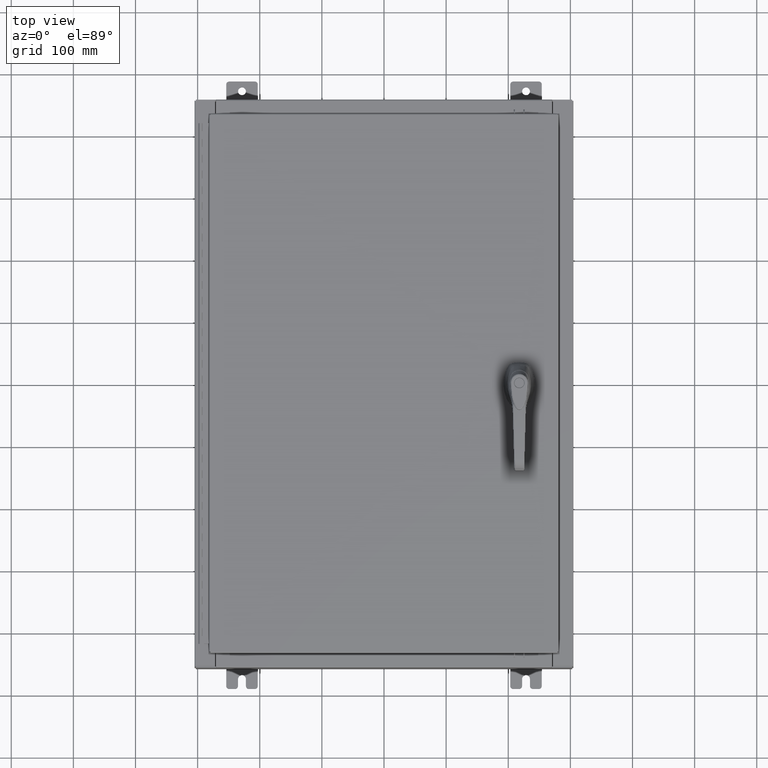
[diagram: clean part render]
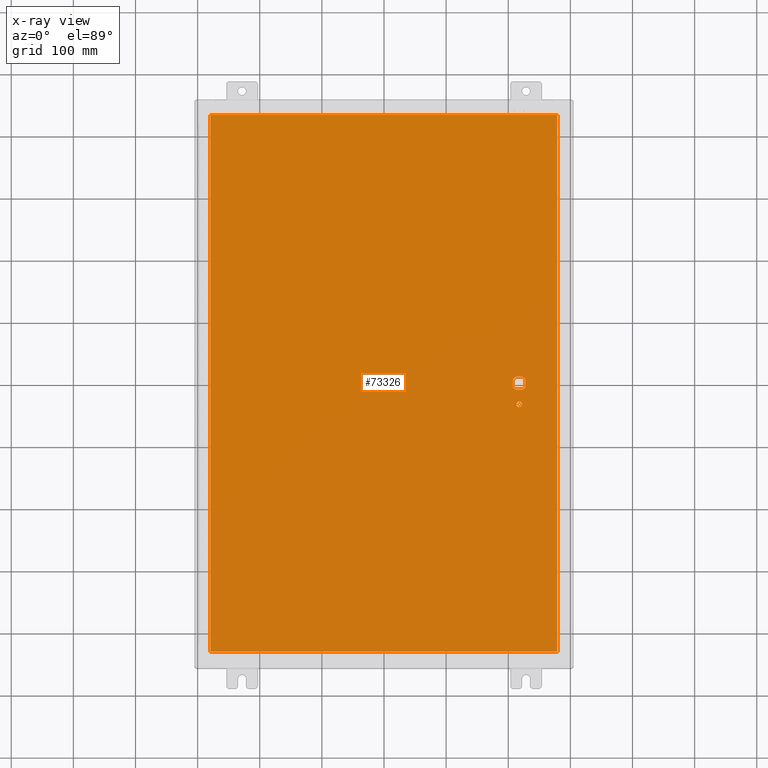
[diagram: x-ray — body ghosted, one internal face saturated and labeled with its STEP entity id]
A machine part, top view, then the same camera in x-ray: the body is ghosted and one INTERNAL B-rep face — a face not visible from any outside direction — is saturated and labeled: STEP entity #73326.
In plain terms, the highlighted planar face has unit normal (0, 0, -1).
Its self-contained STEP definition (entity closure, byte-faithful):
#593 = CARTESIAN_POINT ( 'NONE',  ( 10.99029999999999600, -17.00629999999999200, -0.07470000000000019700 ) ) ;
#1546 = CARTESIAN_POINT ( 'NONE',  ( 8.175000000000070000, -0.2002273707563079800, -0.07470000000000003000 ) ) ;
#1820 = LINE ( 'NONE', #8176, #24157 ) ;
#2194 = ORIENTED_EDGE ( 'NONE', *, *, #97568, .T. ) ;
#2239 = EDGE_CURVE ( 'NONE', #36627, #59120, #80043, .T. ) ;
#4317 = FACE_OUTER_BOUND ( 'NONE', #79072, .T. ) ;
#5348 = EDGE_CURVE ( 'NONE', #64577, #87486, #90201, .T. ) ;
#7894 = CARTESIAN_POINT ( 'NONE',  ( -10.99030000000000000, -17.00629999999999600, -0.07470000000000000300 ) ) ;
#8176 = CARTESIAN_POINT ( 'NONE',  ( -10.99030000000000000, -17.00629999999999600, -0.07470000000000019700 ) ) ;
#8549 = EDGE_CURVE ( 'NONE', #87486, #51348, #93491, .T. ) ;
#9253 = DIRECTION ( 'NONE',  ( 2.728745808672812900E-015, -1.000000000000000000, 0.0000000000000000000 ) ) ;
#10382 = CIRCLE ( 'NONE', #29092, 0.4499999999999156900 ) ;
#10771 = EDGE_CURVE ( 'NONE', #23806, #80924, #118714, .T. ) ;
#11320 = CARTESIAN_POINT ( 'NONE',  ( 10.99029999999999600, 17.00630000000000700, -0.07470000000000000300 ) ) ;
#14340 = VECTOR ( 'NONE', #39274, 39.37007874015748100 ) ;
#17018 = CARTESIAN_POINT ( 'NONE',  ( 0.0000000000000000000, -0.4029999999999252000, -0.07470000000000003000 ) ) ;
#17096 = DIRECTION ( 'NONE',  ( -0.0000000000000000000, -0.0000000000000000000, 1.000000000000000000 ) ) ;
#19768 = VECTOR ( 'NONE', #48796, 39.37007874015748100 ) ;
#20155 = CARTESIAN_POINT ( 'NONE',  ( -10.99030000000000500, 17.00630000000000700, -0.07470000000000347200 ) ) ;
#20478 = VECTOR ( 'NONE', #9253, 39.37007874015748100 ) ;
#21293 = CARTESIAN_POINT ( 'NONE',  ( 8.778227370756305000, 0.4029999999999250300, -0.07470000000000003000 ) ) ;
#22646 = EDGE_CURVE ( 'NONE', #42463, #67668, #92021, .T. ) ;
#23138 = AXIS2_PLACEMENT_3D ( 'NONE', #94121, #104299, #32305 ) ;
#23806 = VERTEX_POINT ( 'NONE', #24784 ) ;
#24157 = VECTOR ( 'NONE', #84256, 39.37007874015748100 ) ;
#24169 = ORIENTED_EDGE ( 'NONE', *, *, #49184, .F. ) ;
#24784 = CARTESIAN_POINT ( 'NONE',  ( 8.980999999999921700, 0.2002273707563080300, -0.07470000000000003000 ) ) ;
#25664 = CARTESIAN_POINT ( 'NONE',  ( 8.175000000000070000, 0.0000000000000000000, -0.07470000000000003000 ) ) ;
#25914 = CARTESIAN_POINT ( 'NONE',  ( 8.980999999999921700, -0.2002273707563075900, -0.07470000000000003000 ) ) ;
#26984 = DIRECTION ( 'NONE',  ( 1.000000000000000000, 0.0000000000000000000, 0.0000000000000000000 ) ) ;
#27481 = ORIENTED_EDGE ( 'NONE', *, *, #50099, .T. ) ;
#29092 = AXIS2_PLACEMENT_3D ( 'NONE', #73992, #17096, #83622 ) ;
#29423 = DIRECTION ( 'NONE',  ( 0.0000000000000000000, 1.000000000000000000, 0.0000000000000000000 ) ) ;
#31186 = ORIENTED_EDGE ( 'NONE', *, *, #39557, .F. ) ;
#32305 = DIRECTION ( 'NONE',  ( -1.000000000000000000, 0.0000000000000000000, 0.0000000000000000000 ) ) ;
#33165 = VERTEX_POINT ( 'NONE', #81370 ) ;
#33496 = AXIS2_PLACEMENT_3D ( 'NONE', #92367, #35396, #101965 ) ;
#35396 = DIRECTION ( 'NONE',  ( -0.0000000000000000000, -0.0000000000000000000, 1.000000000000000000 ) ) ;
#35882 = PLANE ( 'NONE',  #103937 ) ;
#36627 = VERTEX_POINT ( 'NONE', #77604 ) ;
#37412 = EDGE_LOOP ( 'NONE', ( #104308, #49125 ) ) ;
#39274 = DIRECTION ( 'NONE',  ( -1.000000000000000000, 0.0000000000000000000, 0.0000000000000000000 ) ) ;
#39542 = AXIS2_PLACEMENT_3D ( 'NONE', #48378, #114977, #57952 ) ;
#39557 = EDGE_CURVE ( 'NONE', #59120, #99635, #80959, .T. ) ;
#39952 = DIRECTION ( 'NONE',  ( -0.0000000000000000000, -0.0000000000000000000, 1.000000000000000000 ) ) ;
#42463 = VERTEX_POINT ( 'NONE', #1546 ) ;
#43242 = CIRCLE ( 'NONE', #97049, 0.4499999999999156900 ) ;
#44913 = LINE ( 'NONE', #25664, #92565 ) ;
#45033 = LINE ( 'NONE', #20155, #19768 ) ;
#45991 = CARTESIAN_POINT ( 'NONE',  ( -10.99030000000000100, 17.00630000000000700, -0.07470000000000000300 ) ) ;
#48378 = CARTESIAN_POINT ( 'NONE',  ( 8.577999999999995900, -1.338000000000000100, -0.07470000000000003000 ) ) ;
#48796 = DIRECTION ( 'NONE',  ( 0.0000000000000000000, -1.000000000000000000, 0.0000000000000000000 ) ) ;
#48859 = DIRECTION ( 'NONE',  ( -0.0000000000000000000, -0.0000000000000000000, 1.000000000000000000 ) ) ;
#49106 = CARTESIAN_POINT ( 'NONE',  ( 8.377772629243686700, -0.4029999999999250300, -0.07470000000000003000 ) ) ;
#49125 = ORIENTED_EDGE ( 'NONE', *, *, #82871, .T. ) ;
#49184 = EDGE_CURVE ( 'NONE', #99635, #83570, #45033, .T. ) ;
#50099 = EDGE_CURVE ( 'NONE', #51348, #42463, #44913, .T. ) ;
#51348 = VERTEX_POINT ( 'NONE', #57209 ) ;
#51381 = EDGE_CURVE ( 'NONE', #33165, #80924, #43242, .T. ) ;
#52225 = ORIENTED_EDGE ( 'NONE', *, *, #10771, .F. ) ;
#53516 = EDGE_LOOP ( 'NONE', ( #103346, #52225, #102086, #119986, #77441, #27481, #113777, #2194 ) ) ;
#57209 = CARTESIAN_POINT ( 'NONE',  ( 8.175000000000070000, 0.2002273707563080300, -0.07470000000000003000 ) ) ;
#57952 = DIRECTION ( 'NONE',  ( -1.000000000000000000, 0.0000000000000000000, 0.0000000000000000000 ) ) ;
#59120 = VERTEX_POINT ( 'NONE', #11320 ) ;
#61010 = EDGE_CURVE ( 'NONE', #83570, #36627, #1820, .T. ) ;
#64577 = VERTEX_POINT ( 'NONE', #21293 ) ;
#66284 = DIRECTION ( 'NONE',  ( -1.000000000000000000, -0.0000000000000000000, -0.0000000000000000000 ) ) ;
#66451 = CARTESIAN_POINT ( 'NONE',  ( 8.377772629243686700, 0.4029999999999252000, -0.07470000000000003000 ) ) ;
#67668 = VERTEX_POINT ( 'NONE', #49106 ) ;
#67968 = ORIENTED_EDGE ( 'NONE', *, *, #61010, .F. ) ;
#70775 = VERTEX_POINT ( 'NONE', #109713 ) ;
#71063 = VECTOR ( 'NONE', #29423, 39.37007874015748100 ) ;
#71678 = CARTESIAN_POINT ( 'NONE',  ( 8.980999999999921700, 2.450686610769031800E-014, -0.07470000000000003000 ) ) ;
#73326 = ADVANCED_FACE ( 'NONE', ( #105445, #4317, #83144 ), #35882, .T. ) ;
#73992 = CARTESIAN_POINT ( 'NONE',  ( 8.577999999999995900, 0.0000000000000000000, -0.07470000000000003000 ) ) ;
#74376 = CARTESIAN_POINT ( 'NONE',  ( 8.406499999999994100, -1.338000000000000100, -0.07470000000000003000 ) ) ;
#77441 = ORIENTED_EDGE ( 'NONE', *, *, #8549, .T. ) ;
#77604 = CARTESIAN_POINT ( 'NONE',  ( 10.99029999999999600, -17.00629999999999600, -0.07470000000000000300 ) ) ;
#79072 = EDGE_LOOP ( 'NONE', ( #114697, #67968, #24169, #31186 ) ) ;
#80043 = LINE ( 'NONE', #593, #71063 ) ;
#80924 = VERTEX_POINT ( 'NONE', #25914 ) ;
#80959 = LINE ( 'NONE', #123311, #100365 ) ;
#81370 = CARTESIAN_POINT ( 'NONE',  ( 8.778227370756305000, -0.4029999999999252000, -0.07470000000000003000 ) ) ;
#82871 = EDGE_CURVE ( 'NONE', #118048, #70775, #114520, .T. ) ;
#83144 = FACE_BOUND ( 'NONE', #53516, .T. ) ;
#83288 = CARTESIAN_POINT ( 'NONE',  ( 0.0000000000000000000, 0.0000000000000000000, -0.07470000000000000300 ) ) ;
#83570 = VERTEX_POINT ( 'NONE', #7894 ) ;
#83622 = DIRECTION ( 'NONE',  ( -1.000000000000000000, 0.0000000000000000000, 0.0000000000000000000 ) ) ;
#84256 = DIRECTION ( 'NONE',  ( 1.000000000000000000, -0.0000000000000000000, -0.0000000000000000000 ) ) ;
#87441 = EDGE_CURVE ( 'NONE', #23806, #64577, #10382, .T. ) ;
#87486 = VERTEX_POINT ( 'NONE', #66451 ) ;
#90201 = LINE ( 'NONE', #108008, #14340 ) ;
#92021 = CIRCLE ( 'NONE', #33496, 0.4499999999999156900 ) ;
#92188 = DIRECTION ( 'NONE',  ( 0.0000000000000000000, -1.000000000000000000, 0.0000000000000000000 ) ) ;
#92367 = CARTESIAN_POINT ( 'NONE',  ( 8.577999999999995900, 0.0000000000000000000, -0.07470000000000003000 ) ) ;
#92565 = VECTOR ( 'NONE', #92188, 39.37007874015748100 ) ;
#93491 = CIRCLE ( 'NONE', #23138, 0.4499999999999156900 ) ;
#94121 = CARTESIAN_POINT ( 'NONE',  ( 8.577999999999995900, 0.0000000000000000000, -0.07470000000000003000 ) ) ;
#96966 = CARTESIAN_POINT ( 'NONE',  ( 8.577999999999995900, -1.338000000000000100, -0.07470000000000003000 ) ) ;
#97049 = AXIS2_PLACEMENT_3D ( 'NONE', #105855, #48859, #115455 ) ;
#97568 = EDGE_CURVE ( 'NONE', #67668, #33165, #117289, .T. ) ;
#99635 = VERTEX_POINT ( 'NONE', #45991 ) ;
#100365 = VECTOR ( 'NONE', #66284, 39.37007874015748100 ) ;
#101965 = DIRECTION ( 'NONE',  ( -1.000000000000000000, 8.881784197001256300E-016, 0.0000000000000000000 ) ) ;
#102015 = CIRCLE ( 'NONE', #39542, 0.1715000000000011500 ) ;
#102086 = ORIENTED_EDGE ( 'NONE', *, *, #87441, .T. ) ;
#102421 = DIRECTION ( 'NONE',  ( -1.000000000000000000, 0.0000000000000000000, -0.0000000000000000000 ) ) ;
#103346 = ORIENTED_EDGE ( 'NONE', *, *, #51381, .T. ) ;
#103937 = AXIS2_PLACEMENT_3D ( 'NONE', #83288, #111625, #102421 ) ;
#104299 = DIRECTION ( 'NONE',  ( -0.0000000000000000000, -0.0000000000000000000, 1.000000000000000000 ) ) ;
#104308 = ORIENTED_EDGE ( 'NONE', *, *, #105628, .T. ) ;
#105445 = FACE_BOUND ( 'NONE', #37412, .T. ) ;
#105628 = EDGE_CURVE ( 'NONE', #70775, #118048, #102015, .T. ) ;
#105855 = CARTESIAN_POINT ( 'NONE',  ( 8.577999999999995900, 0.0000000000000000000, -0.07470000000000003000 ) ) ;
#106498 = DIRECTION ( 'NONE',  ( -1.000000000000000000, 0.0000000000000000000, 0.0000000000000000000 ) ) ;
#108008 = CARTESIAN_POINT ( 'NONE',  ( 0.0000000000000000000, 0.4029999999999252000, -0.07470000000000003000 ) ) ;
#109248 = AXIS2_PLACEMENT_3D ( 'NONE', #96966, #39952, #106498 ) ;
#109713 = CARTESIAN_POINT ( 'NONE',  ( 8.749499999999997600, -1.338000000000000100, -0.07470000000000003000 ) ) ;
#111625 = DIRECTION ( 'NONE',  ( 0.0000000000000000000, 0.0000000000000000000, -1.000000000000000000 ) ) ;
#113777 = ORIENTED_EDGE ( 'NONE', *, *, #22646, .T. ) ;
#114300 = VECTOR ( 'NONE', #26984, 39.37007874015748100 ) ;
#114520 = CIRCLE ( 'NONE', #109248, 0.1715000000000011500 ) ;
#114697 = ORIENTED_EDGE ( 'NONE', *, *, #2239, .F. ) ;
#114977 = DIRECTION ( 'NONE',  ( -0.0000000000000000000, -0.0000000000000000000, 1.000000000000000000 ) ) ;
#115455 = DIRECTION ( 'NONE',  ( -1.000000000000000000, 1.776356839400251300E-015, 0.0000000000000000000 ) ) ;
#117289 = LINE ( 'NONE', #17018, #114300 ) ;
#118048 = VERTEX_POINT ( 'NONE', #74376 ) ;
#118714 = LINE ( 'NONE', #71678, #20478 ) ;
#119986 = ORIENTED_EDGE ( 'NONE', *, *, #5348, .T. ) ;
#123311 = CARTESIAN_POINT ( 'NONE',  ( 10.99029999999999800, 17.00630000000000700, -0.07470000000000019700 ) ) ;